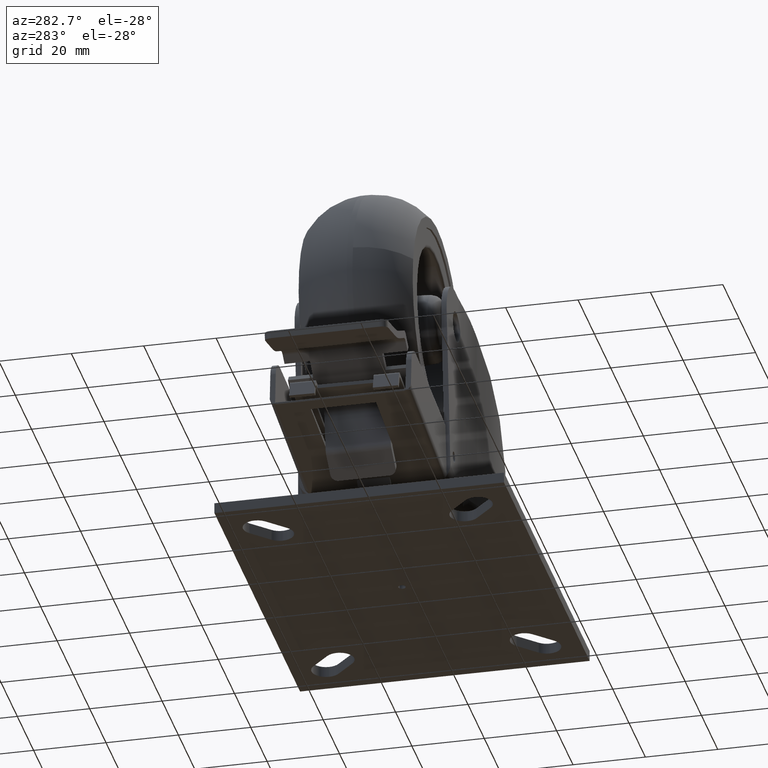
[diagram: clean part render]
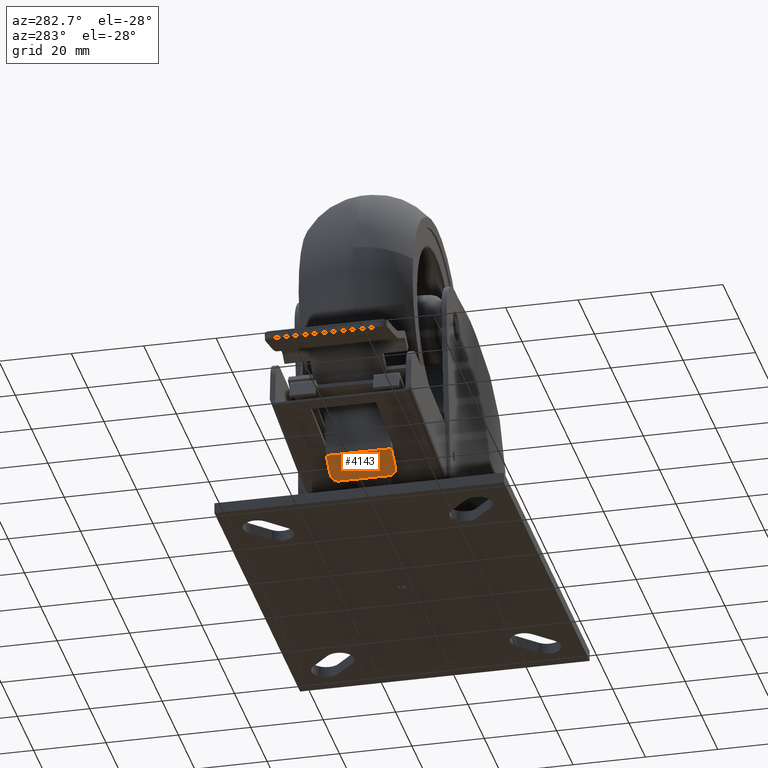
[diagram: same view with one face highlighted and labeled with its STEP entity id]
A machine part, auxiliary view. The second image highlights one B-rep face of the part: STEP entity #4143.
In plain terms, the highlighted planar face has unit normal (0.5736, -0, 0.8192).
Its self-contained STEP definition (entity closure, byte-faithful):
#3920 = VERTEX_POINT ( 'NONE', #8315 ) ;
#3943 = VERTEX_POINT ( 'NONE', #8298 ) ;
#3947 = EDGE_CURVE ( 'NONE', #3943, #3920, #8362, .T. ) ;
#4015 = EDGE_CURVE ( 'NONE', #3920, #4018, #8404, .T. ) ;
#4018 = VERTEX_POINT ( 'NONE', #8393 ) ;
#4054 = VERTEX_POINT ( 'NONE', #8457 ) ;
#4061 = EDGE_CURVE ( 'NONE', #4054, #4063, #8451, .T. ) ;
#4063 = VERTEX_POINT ( 'NONE', #8447 ) ;
#4129 = VERTEX_POINT ( 'NONE', #8514 ) ;
#4135 = EDGE_CURVE ( 'NONE', #4129, #3943, #8509, .T. ) ;
#4143 = ADVANCED_FACE ( 'NONE', ( #8500 ), #8498, .F. ) ;
#4211 = EDGE_LOOP ( 'NONE', ( #4215, #4217, #4226, #4228, #4235, #4239 ) ) ;
#4215 = ORIENTED_EDGE ( 'NONE', *, *, #4015, .F. ) ;
#4217 = ORIENTED_EDGE ( 'NONE', *, *, #3947, .F. ) ;
#4226 = ORIENTED_EDGE ( 'NONE', *, *, #4135, .F. ) ;
#4228 = ORIENTED_EDGE ( 'NONE', *, *, #4231, .T. ) ;
#4231 = EDGE_CURVE ( 'NONE', #4129, #4063, #8607, .T. ) ;
#4235 = ORIENTED_EDGE ( 'NONE', *, *, #4061, .F. ) ;
#4239 = ORIENTED_EDGE ( 'NONE', *, *, #4240, .T. ) ;
#4240 = EDGE_CURVE ( 'NONE', #4054, #4018, #8603, .T. ) ;
#8298 = CARTESIAN_POINT ( 'NONE',  ( -38.00000000000000700, 10.00000000000000000, 23.99999999961530900 ) ) ;
#8315 = CARTESIAN_POINT ( 'NONE',  ( -38.00000000000000000, 10.00000000000000000, 9.999999999615310400 ) ) ;
#8359 = DIRECTION ( 'NONE',  ( 0.0000000000000000000, 0.0000000000000000000, -1.000000000000000000 ) ) ;
#8360 = VECTOR ( 'NONE', #8359, 1000.000000000000000 ) ;
#8361 = CARTESIAN_POINT ( 'NONE',  ( -38.00000000000000000, 10.00000000000000000, 17.00000000000000000 ) ) ;
#8362 = LINE ( 'NONE', #8361, #8360 ) ;
#8393 = CARTESIAN_POINT ( 'NONE',  ( -36.00000000000000700, 10.00000000000000000, 8.000000000000000000 ) ) ;
#8400 = DIRECTION ( 'NONE',  ( 0.0000000000000000000, 0.0000000000000000000, 1.000000000000000000 ) ) ;
#8401 = DIRECTION ( 'NONE',  ( 0.0000000000000000000, -1.000000000000000000, -0.0000000000000000000 ) ) ;
#8402 = CARTESIAN_POINT ( 'NONE',  ( -36.00000000000000700, 10.00000000000000000, 10.00000000000000000 ) ) ;
#8403 = AXIS2_PLACEMENT_3D ( 'NONE', #8402, #8401, #8400 ) ;
#8404 = CIRCLE ( 'NONE', #8403, 2.000000000000000000 ) ;
#8447 = CARTESIAN_POINT ( 'NONE',  ( -30.00000000000000000, 10.00000000000000000, 26.00000000000000400 ) ) ;
#8448 = DIRECTION ( 'NONE',  ( -0.0000000000000000000, -0.0000000000000000000, 1.000000000000000000 ) ) ;
#8449 = VECTOR ( 'NONE', #8448, 1000.000000000000000 ) ;
#8450 = CARTESIAN_POINT ( 'NONE',  ( -30.00000000000000000, 10.00000000000000000, 17.00000000000000000 ) ) ;
#8451 = LINE ( 'NONE', #8450, #8449 ) ;
#8457 = CARTESIAN_POINT ( 'NONE',  ( -30.00000000000000000, 10.00000000000000000, 8.000000000000000000 ) ) ;
#8495 = DIRECTION ( 'NONE',  ( 0.0000000000000000000, -1.000000000000000000, 0.0000000000000000000 ) ) ;
#8496 = CARTESIAN_POINT ( 'NONE',  ( -38.00000000000000000, 10.00000000000000000, 26.00000000000000400 ) ) ;
#8497 = AXIS2_PLACEMENT_3D ( 'NONE', #8496, #8495, #8558 ) ;
#8498 = PLANE ( 'NONE',  #8497 ) ;
#8500 = FACE_OUTER_BOUND ( 'NONE', #4211, .T. ) ;
#8505 = DIRECTION ( 'NONE',  ( 0.0000000000000000000, 0.0000000000000000000, 1.000000000000000000 ) ) ;
#8506 = DIRECTION ( 'NONE',  ( -0.0000000000000000000, -1.000000000000000000, -0.0000000000000000000 ) ) ;
#8507 = CARTESIAN_POINT ( 'NONE',  ( -36.00000000000000700, 10.00000000000000000, 24.00000000000000000 ) ) ;
#8508 = AXIS2_PLACEMENT_3D ( 'NONE', #8507, #8506, #8505 ) ;
#8509 = CIRCLE ( 'NONE', #8508, 2.000000000000001800 ) ;
#8514 = CARTESIAN_POINT ( 'NONE',  ( -36.00000000000000700, 10.00000000000000000, 26.00000000000000400 ) ) ;
#8558 = DIRECTION ( 'NONE',  ( 0.0000000000000000000, 0.0000000000000000000, -1.000000000000000000 ) ) ;
#8600 = DIRECTION ( 'NONE',  ( -1.000000000000000000, -0.0000000000000000000, -0.0000000000000000000 ) ) ;
#8601 = VECTOR ( 'NONE', #8600, 1000.000000000000000 ) ;
#8602 = CARTESIAN_POINT ( 'NONE',  ( -28.00000000000000400, 10.00000000000000000, 8.000000000000000000 ) ) ;
#8603 = LINE ( 'NONE', #8602, #8601 ) ;
#8604 = DIRECTION ( 'NONE',  ( 1.000000000000000000, -0.0000000000000000000, -0.0000000000000000000 ) ) ;
#8605 = VECTOR ( 'NONE', #8604, 1000.000000000000000 ) ;
#8606 = CARTESIAN_POINT ( 'NONE',  ( -28.00000000000000400, 10.00000000000000000, 26.00000000000000400 ) ) ;
#8607 = LINE ( 'NONE', #8606, #8605 ) ;